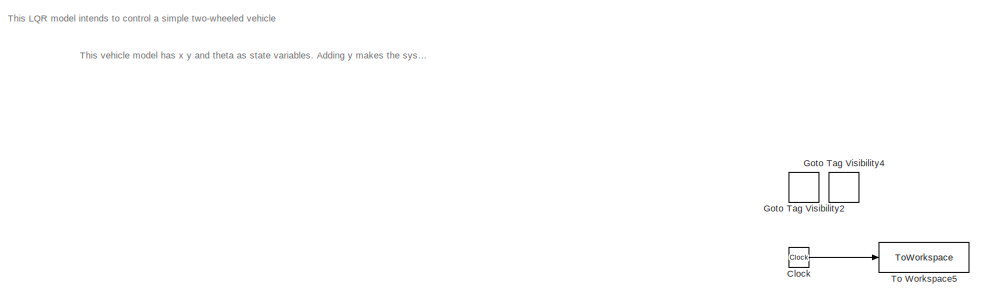
[diagram: root canvas - part 1/3, top center region]
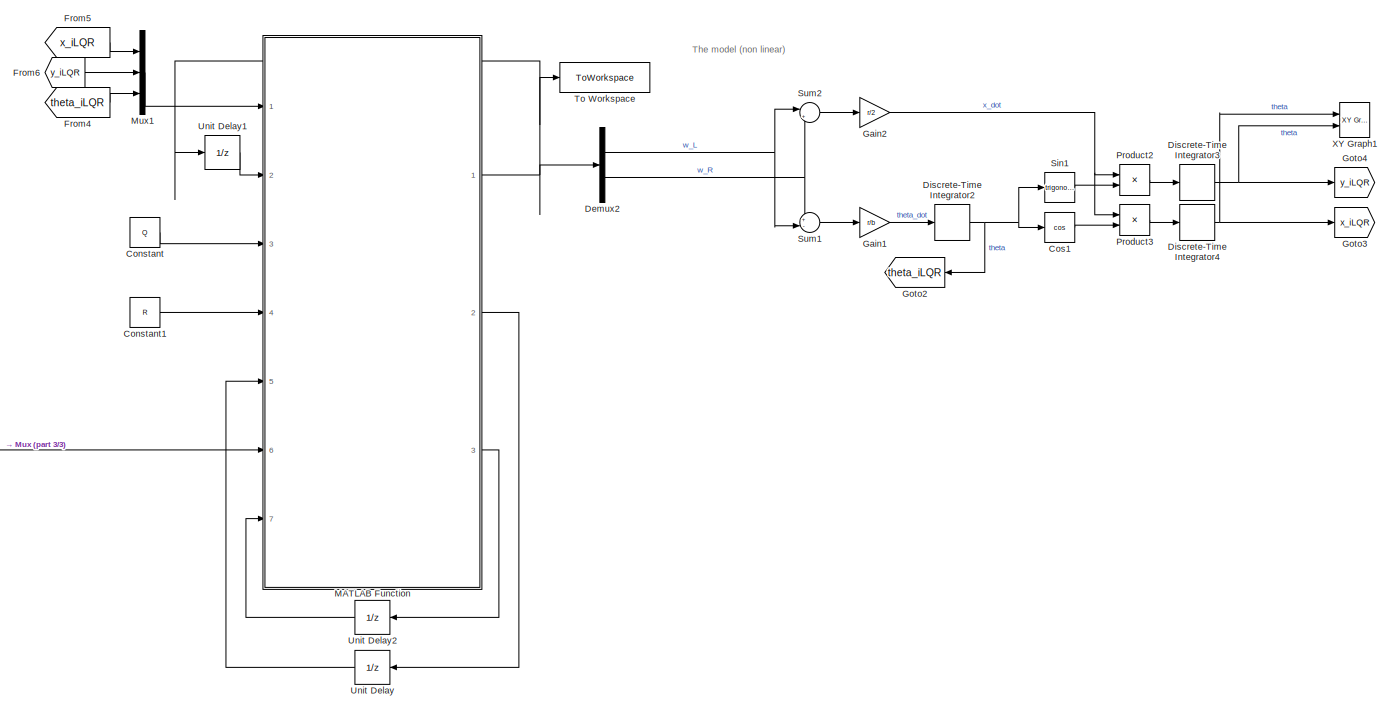
[diagram: root canvas - part 2/3, full width, middle band]
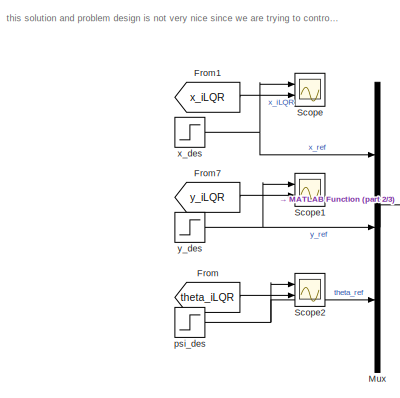
[diagram: root canvas - part 3/3, bottom left region]
MODEL slx_089b74b433c4
KIND model
CONFIG AbsTol = auto
CONFIG EnableMultiTasking = off
CONFIG FixedStep = 0.001
CONFIG MaxStep = 0.01
CONFIG MinStep = auto
CONFIG RelTol = 1e-3
CONFIG SampleTimeConstraint = Unconstrained
CONFIG SolverName = FixedStepDiscrete
CONFIG StartTime = 0.0
CONFIG StopTime = 20
BLOCK [Clock] Clock
BLOCK [Constant] Constant
  Value = Q
BLOCK [Constant] Constant1
  Value = R
BLOCK [Trigonometry] Cos1
  Operator = cos
  Ports = [1, 1]
BLOCK [Demux] Demux2
  Outputs = 2
  Ports = [1, 2]
BLOCK [DiscreteIntegrator] Discrete-Time Integrator2
  ICPrevOutput = DiscIntNeverNeededParam
  ICPrevScaledInput = DiscIntNeverNeededParam
  InitialConditionSetting = Auto
  Ports = [1, 1]
  SampleTime = -1
BLOCK [DiscreteIntegrator] Discrete-Time Integrator3
  ICPrevOutput = DiscIntNeverNeededParam
  ICPrevScaledInput = DiscIntNeverNeededParam
  InitialConditionSetting = Auto
  Ports = [1, 1]
  SampleTime = -1
BLOCK [DiscreteIntegrator] Discrete-Time Integrator4
  ICPrevOutput = DiscIntNeverNeededParam
  ICPrevScaledInput = DiscIntNeverNeededParam
  InitialConditionSetting = Auto
  Ports = [1, 1]
  SampleTime = -1
BLOCK [From] From
  GotoTag = theta_iLQR
BLOCK [From] From1
  GotoTag = x_iLQR
BLOCK [From] From4
  GotoTag = theta_iLQR
BLOCK [From] From5
  GotoTag = x_iLQR
BLOCK [From] From6
  GotoTag = y_iLQR
BLOCK [From] From7
  GotoTag = y_iLQR
BLOCK [Gain] Gain1
  Gain = r/b
BLOCK [Gain] Gain2
  Gain = r/2
BLOCK [GotoTagVisibility] Goto Tag Visibility2
  GotoTag = x
BLOCK [GotoTagVisibility] Goto Tag Visibility4
  GotoTag = theta
BLOCK [Goto] Goto2
  GotoTag = theta_iLQR
BLOCK [Goto] Goto3
  GotoTag = x_iLQR
BLOCK [Goto] Goto4
  GotoTag = y_iLQR
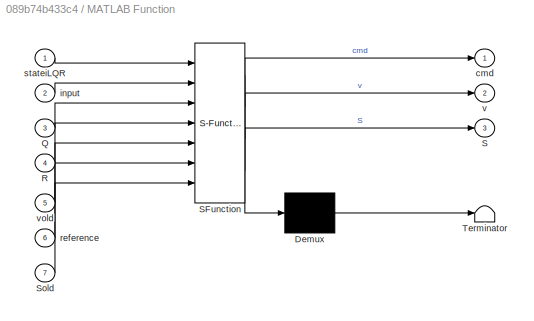
BLOCK [SubSystem] MATLAB Function
  ErrorFcn = Stateflow.Translate.translate
  PermitHierarchicalResolution = ExplicitOnly
  Ports = [7, 3]
  RequestExecContextInheritance = off
  SFBlockType = MATLAB Function
  TreatAsAtomicUnit = on
BLOCK [Demux] MATLAB Function/ Demux 
  Outputs = 1
  Ports = [1, 1]
BLOCK [S-Function] MATLAB Function/ SFunction 
  EnableBusSupport = on
  FunctionName = sf_sfun
  PortCounts = [7 4]
  Ports = [7, 4]
  SFcnIsStateOwnerBlock = off
  SFunctionDeploymentMode = off
  Tag = Stateflow S-Function 2
BLOCK [Terminator] MATLAB Function/ Terminator 
BLOCK [Inport] MATLAB Function/Q
  Port = 3
BLOCK [Inport] MATLAB Function/R
  Port = 4
BLOCK [Outport] MATLAB Function/S
  Port = 3
BLOCK [Inport] MATLAB Function/Sold
  Port = 7
BLOCK [Outport] MATLAB Function/cmd
BLOCK [Inport] MATLAB Function/input
  Port = 2
BLOCK [Inport] MATLAB Function/reference
  Port = 6
BLOCK [Inport] MATLAB Function/stateiLQR
BLOCK [Outport] MATLAB Function/v
  Port = 2
BLOCK [Inport] MATLAB Function/vold
  Port = 5
BLOCK [Mux] Mux
  DisplayOption = bar
  Inputs = 3
  Ports = [3, 1]
BLOCK [Mux] Mux1
  DisplayOption = bar
  Inputs = 3
  Ports = [3, 1]
BLOCK [Product] Product2
  Ports = [2, 1]
BLOCK [Product] Product3
  Ports = [2, 1]
BLOCK [Scope] Scope
  Floating = off
  NumInputPorts = 2
  Ports = [2]
  ScopeSpecificationString = Simulink.scopes.TimeScopeBlockCfg('CurrentConfiguration', extmgr.ConfigurationSet(extmgr.Configuration('Core','General UI',true),extmgr.Configuration('Core','Source UI',true),extmgr.Configuration('Sources','WiredSimulink',true),extmgr.Configuration('Visuals','Time Domain',true,'SerializedDisplays',{struct('MinYLimReal','-0.14541','MaxYLimReal','1.30865','YLabelReal','','MinYLimMag','0.00000','MaxY...<+1477ch>
BLOCK [Scope] Scope1
  Floating = off
  NumInputPorts = 2
  Ports = [2]
  ScopeSpecificationString = Simulink.scopes.TimeScopeBlockCfg('CurrentConfiguration', extmgr.ConfigurationSet(extmgr.Configuration('Core','General UI',true),extmgr.Configuration('Core','Source UI',true),extmgr.Configuration('Sources','WiredSimulink',true,'DataLoggingVariableName','ScopeData1'),extmgr.Configuration('Visuals','Time Domain',true,'SerializedDisplays',{struct('MinYLimReal','-0.15859','MaxYLimReal','1.42727','YLab...<+1433ch>
BLOCK [Scope] Scope2
  Floating = off
  NumInputPorts = 2
  Ports = [2]
  ScopeSpecificationString = Simulink.scopes.TimeScopeBlockCfg('CurrentConfiguration', extmgr.ConfigurationSet(extmgr.Configuration('Core','General UI',true),extmgr.Configuration('Core','Source UI',true),extmgr.Configuration('Sources','WiredSimulink',true,'DataLoggingVariableName','ScopeData2'),extmgr.Configuration('Visuals','Time Domain',true,'SerializedDisplays',{struct('MinYLimReal','-20','MaxYLimReal','20','YLabelReal',''...<+1525ch>
BLOCK [Trigonometry] Sin1
  Ports = [1, 1]
BLOCK [Sum] Sum1
  Inputs = +-|
  Ports = [2, 1]
BLOCK [Sum] Sum2
  Inputs = |++
  Ports = [2, 1]
BLOCK [ToWorkspace] To Workspace
  FixptAsFi = on
  MaxDataPoints = inf
  Ports = [1]
  SampleTime = -1
  VariableName = w
BLOCK [ToWorkspace] To Workspace5
  FixptAsFi = on
  MaxDataPoints = inf
  Ports = [1]
  SampleTime = -1
  VariableName = time
BLOCK [UnitDelay] Unit Delay
  HasFrameUpgradeWarning = on
  InitialCondition = zeros(3,1)
  SampleTime = -1
BLOCK [UnitDelay] Unit Delay1
  HasFrameUpgradeWarning = on
  InitialCondition = [0, 0]
  SampleTime = -1
BLOCK [UnitDelay] Unit Delay2
  HasFrameUpgradeWarning = on
  InitialCondition = Qf
  SampleTime = -1
BLOCK [Reference] XY Graph1  REF=simulink/Sinks/XY Graph
  Ports = [2]
  SourceBlock = simulink/Sinks/XY Graph
  SourceProductBaseCode = SL
  SourceType = XY scope.
BLOCK [Step] psi_des
  After = 0
  SampleTime = 0
  Time = 0
BLOCK [Step] x_des
  SampleTime = 0
  Time = 3
BLOCK [Step] y_des
  SampleTime = 0
  Time = 0
ANNOTATION (root): The model (non linear)
ANNOTATION (root): This LQR model intends to control a simple two-wheeled vehicle
ANNOTATION (root): This vehicle model has x y and theta as state variables. Adding y makes the system non-controllable. This instability has been solved by adding deltav in A matrix giving v (wr+wl) a small non zero value at all times
ANNOTATION (root): this solution and problem design is not very nice since we are trying to control the three states at once. We should command x and y leaving theta free
LINE Clock:1 -> To Workspace5:1
LINE Constant1:1 -> MATLAB Function:4
LINE Constant:1 -> MATLAB Function:3
LINE Cos1:1 -> Product3:2
NET Demux2:1 -> Sum1:2, Sum2:1
NET Demux2:2 -> Sum1:1, Sum2:2
NET Discrete-Time Integrator2:1 -> Cos1:1, Goto2:1, Sin1:1
NET Discrete-Time Integrator3:1 -> Goto4:1, XY Graph1:2
NET Discrete-Time Integrator4:1 -> Goto3:1, XY Graph1:1
LINE From1:1 -> Scope:2
LINE From4:1 -> Mux1:3
LINE From5:1 -> Mux1:1
LINE From6:1 -> Mux1:2
LINE From7:1 -> Scope1:2
LINE From:1 -> Scope2:2
LINE Gain1:1 -> Discrete-Time Integrator2:1
NET Gain2:1 -> Product2:1, Product3:1
NET MATLAB Function:1 -> Demux2:1, To Workspace:1, Unit Delay1:1
LINE MATLAB Function:2 -> Unit Delay:1
LINE MATLAB Function:3 -> Unit Delay2:1
LINE Mux1:1 -> MATLAB Function:1
LINE Mux:1 -> MATLAB Function:6
LINE Product2:1 -> Discrete-Time Integrator3:1
LINE Product3:1 -> Discrete-Time Integrator4:1
LINE Sin1:1 -> Product2:2
LINE Sum1:1 -> Gain1:1
LINE Sum2:1 -> Gain2:1
LINE Unit Delay1:1 -> MATLAB Function:2
LINE Unit Delay2:1 -> MATLAB Function:7
LINE Unit Delay:1 -> MATLAB Function:5
NET psi_des:1 -> Mux:3, Scope2:1
NET x_des:1 -> Mux:1, Scope:1
NET y_des:1 -> Mux:2, Scope1:1
note: NET lines group one-source signal fan-out (src -> all destinations, sorted); 1:1 wires keep LINE
CHART MATLAB Function states=1 transitions=1
  STATE_LABEL 'eML_blk_kernel()'
  STATE_LABEL 'SCRIPT:\nfunction [cmd, v, S]= fcn(stateiLQR, input , Q, R, vold, reference, Sold)\n\nr = 0.02;\nb = 0.185;\ndt = 0.001;\n\n% toll = 3*10^-5;\n\n% A = [1 0 dt*-sin(psi)*r/2*(wR+wL);...\n%      0 1 dt*cos(psi)*r/2*(wR+wL);...\n%      0 0 1];\n% B = dt*[cos(psi)*r/2 cos(psi)*r/2;...\n%      sin(psi)*r/2 sin(psi)*r/2;...\n%      -r/b r/b];\n% A = eye(3);\n% B = dt*[r/2 r/2;\n%      0 0;\n%      -r/b r/b];\ndeltav = 0.0...<+915ch>'
CHART  states=0 transitions=0
